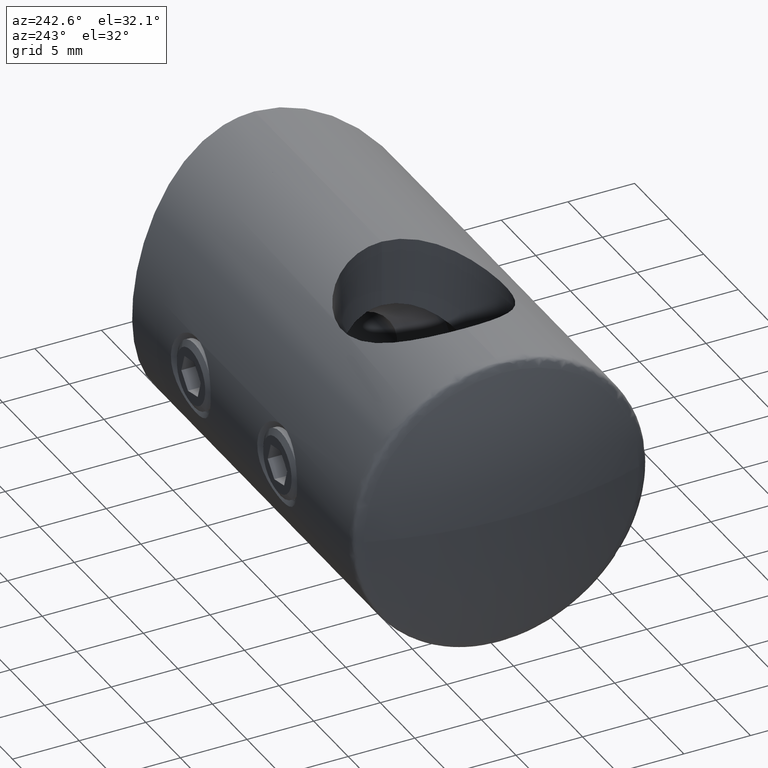
[diagram: clean part render]
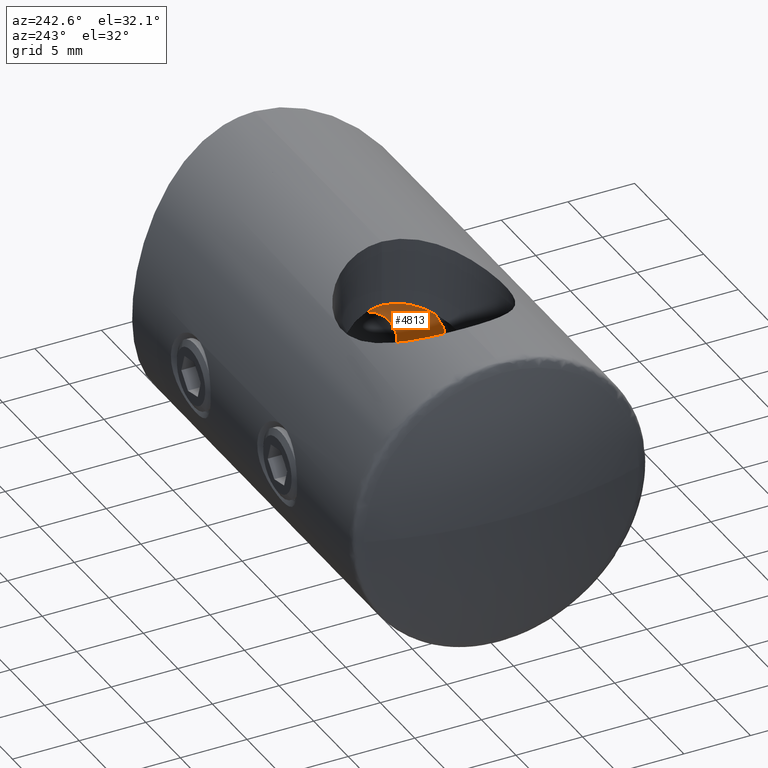
[diagram: same view with one face highlighted and labeled with its STEP entity id]
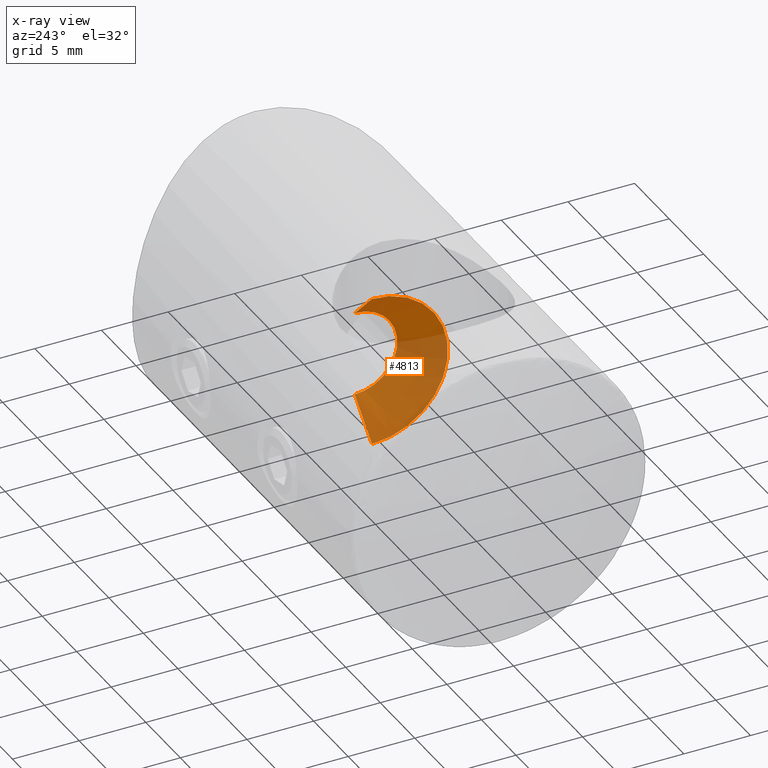
[diagram: x-ray of the same camera — body ghosted, the highlighted face saturated]
A machine part, auxiliary view. The second image highlights one B-rep face of the part: STEP entity #4813.
The next image is the same camera in x-ray: the body ghosted, the highlighted face saturated — about 72% of this face is hidden behind the body in this view.
In plain terms, the highlighted conical surface has half-angle 45 deg.
Its self-contained STEP definition (entity closure, byte-faithful):
#9 = CARTESIAN_POINT ( 'NONE',  ( -20.28848920863309500, 0.0000000000000000000, 5.699999999999996600 ) ) ;
#57 = FACE_OUTER_BOUND ( 'NONE', #4346, .T. ) ;
#307 = DIRECTION ( 'NONE',  ( 0.0000000000000000000, 0.0000000000000000000, 1.000000000000000000 ) ) ;
#478 = AXIS2_PLACEMENT_3D ( 'NONE', #5409, #1581, #307 ) ;
#482 = VERTEX_POINT ( 'NONE', #2415 ) ;
#780 = ORIENTED_EDGE ( 'NONE', *, *, #2211, .F. ) ;
#884 = LINE ( 'NONE', #4815, #3365 ) ;
#958 = LINE ( 'NONE', #9, #4029 ) ;
#1179 = EDGE_CURVE ( 'NONE', #2527, #482, #884, .T. ) ;
#1571 = CARTESIAN_POINT ( 'NONE',  ( -17.78848920863308800, 3.918869757271527500E-016, 3.199999999999998000 ) ) ;
#1581 = DIRECTION ( 'NONE',  ( -1.000000000000000000, -0.0000000000000000000, -0.0000000000000000000 ) ) ;
#1753 = DIRECTION ( 'NONE',  ( -0.7071067811865489100, 8.659560562354913100E-017, -0.7071067811865460200 ) ) ;
#2022 = DIRECTION ( 'NONE',  ( -1.000000000000000000, -0.0000000000000000000, -0.0000000000000000000 ) ) ;
#2033 = CARTESIAN_POINT ( 'NONE',  ( -20.28848920863309500, 0.0000000000000000000, 5.699999999999996600 ) ) ;
#2139 = ORIENTED_EDGE ( 'NONE', *, *, #3644, .F. ) ;
#2211 = EDGE_CURVE ( 'NONE', #5114, #5176, #958, .T. ) ;
#2215 = DIRECTION ( 'NONE',  ( -0.7071067811865489100, 0.0000000000000000000, 0.7071067811865460200 ) ) ;
#2380 = CIRCLE ( 'NONE', #478, 3.199999999999998000 ) ;
#2415 = CARTESIAN_POINT ( 'NONE',  ( -20.28848920863309500, 6.980486755139909200E-016, -5.699999999999996600 ) ) ;
#2483 = ORIENTED_EDGE ( 'NONE', *, *, #3719, .F. ) ;
#2527 = VERTEX_POINT ( 'NONE', #5423 ) ;
#2619 = ORIENTED_EDGE ( 'NONE', *, *, #1179, .T. ) ;
#2860 = CARTESIAN_POINT ( 'NONE',  ( -20.28848920863309500, 0.0000000000000000000, 0.0000000000000000000 ) ) ;
#3342 = DIRECTION ( 'NONE',  ( 1.000000000000000000, -0.0000000000000000000, -0.0000000000000000000 ) ) ;
#3365 = VECTOR ( 'NONE', #1753, 1000.000000000000100 ) ;
#3506 = CIRCLE ( 'NONE', #4593, 5.699999999999996600 ) ;
#3644 = EDGE_CURVE ( 'NONE', #5176, #482, #3506, .T. ) ;
#3719 = EDGE_CURVE ( 'NONE', #2527, #5114, #2380, .T. ) ;
#3736 = CARTESIAN_POINT ( 'NONE',  ( -20.28848920863309500, 0.0000000000000000000, 0.0000000000000000000 ) ) ;
#4029 = VECTOR ( 'NONE', #2215, 1000.000000000000100 ) ;
#4134 = CONICAL_SURFACE ( 'NONE', #5508, 5.699999999999996600, 0.7853981633974461700 ) ;
#4346 = EDGE_LOOP ( 'NONE', ( #2483, #2619, #2139, #780 ) ) ;
#4576 = DIRECTION ( 'NONE',  ( 0.0000000000000000000, 0.0000000000000000000, 1.000000000000000000 ) ) ;
#4593 = AXIS2_PLACEMENT_3D ( 'NONE', #2860, #3342, #4576 ) ;
#4813 = ADVANCED_FACE ( 'NONE', ( #57 ), #4134, .F. ) ;
#4815 = CARTESIAN_POINT ( 'NONE',  ( -20.28848920863309500, 6.980486755139909200E-016, -5.699999999999996600 ) ) ;
#5014 = DIRECTION ( 'NONE',  ( 0.0000000000000000000, 0.0000000000000000000, 1.000000000000000000 ) ) ;
#5114 = VERTEX_POINT ( 'NONE', #1571 ) ;
#5176 = VERTEX_POINT ( 'NONE', #2033 ) ;
#5409 = CARTESIAN_POINT ( 'NONE',  ( -17.78848920863308800, 0.0000000000000000000, 0.0000000000000000000 ) ) ;
#5423 = CARTESIAN_POINT ( 'NONE',  ( -17.78848920863308800, 0.0000000000000000000, -3.199999999999998000 ) ) ;
#5508 = AXIS2_PLACEMENT_3D ( 'NONE', #3736, #2022, #5014 ) ;